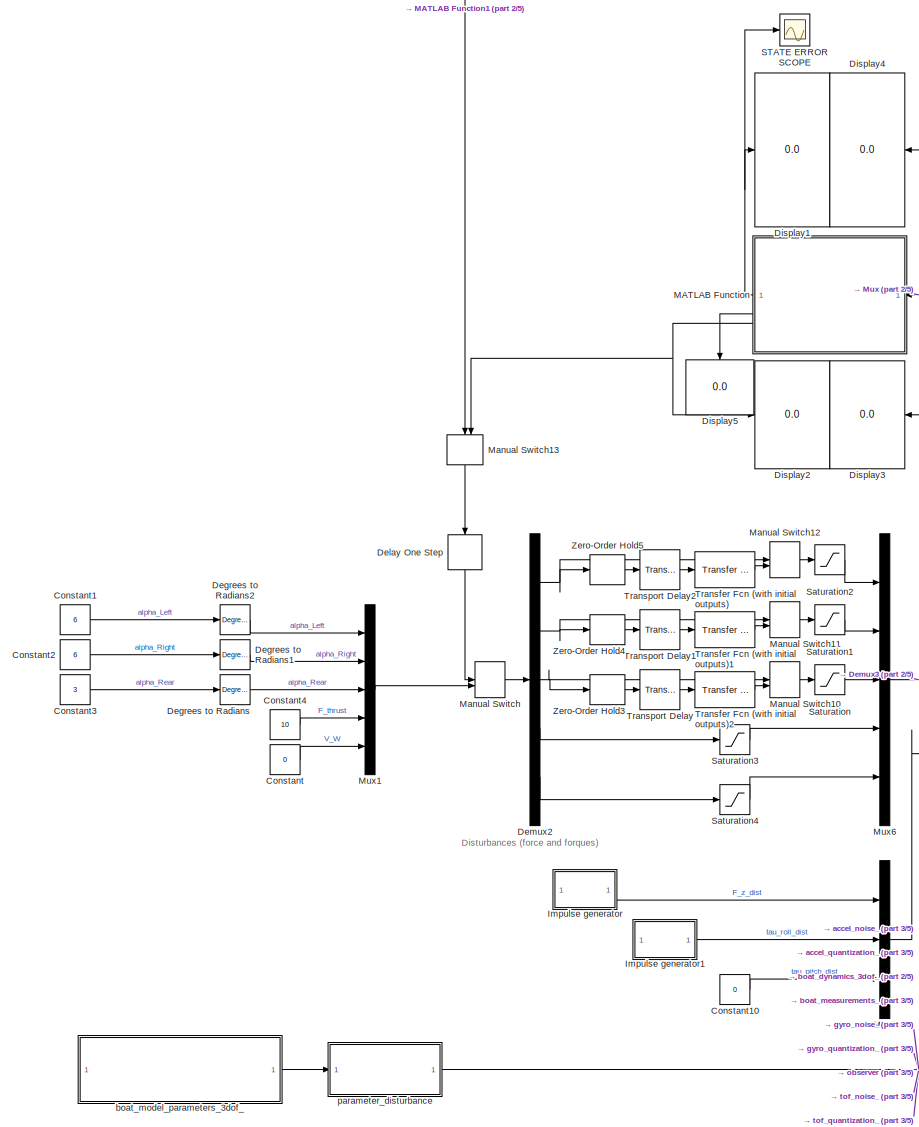
[diagram: root canvas - part 1/5, middle left region]
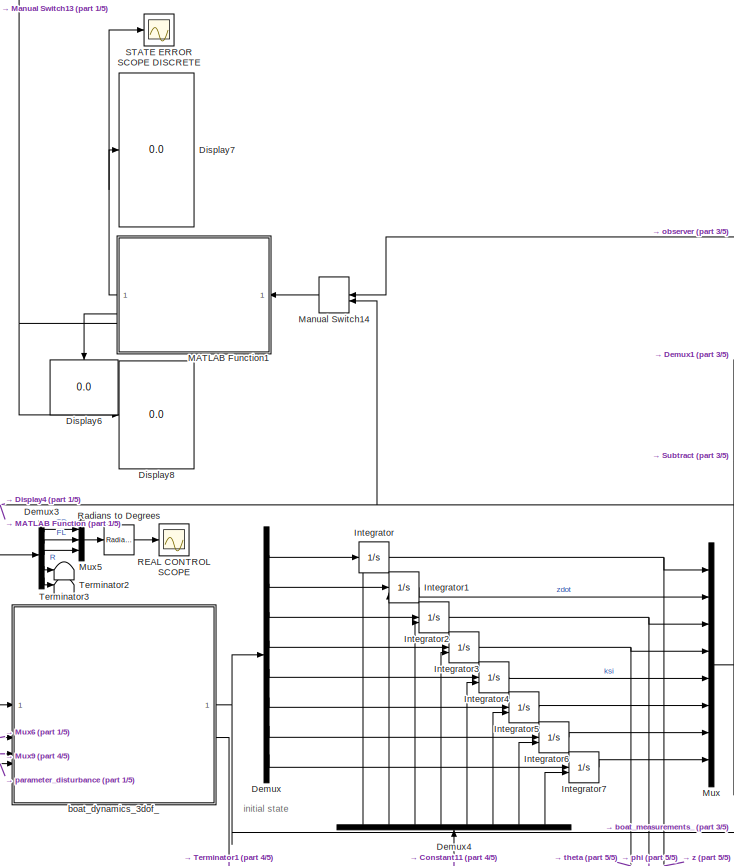
[diagram: root canvas - part 2/5, top center region]
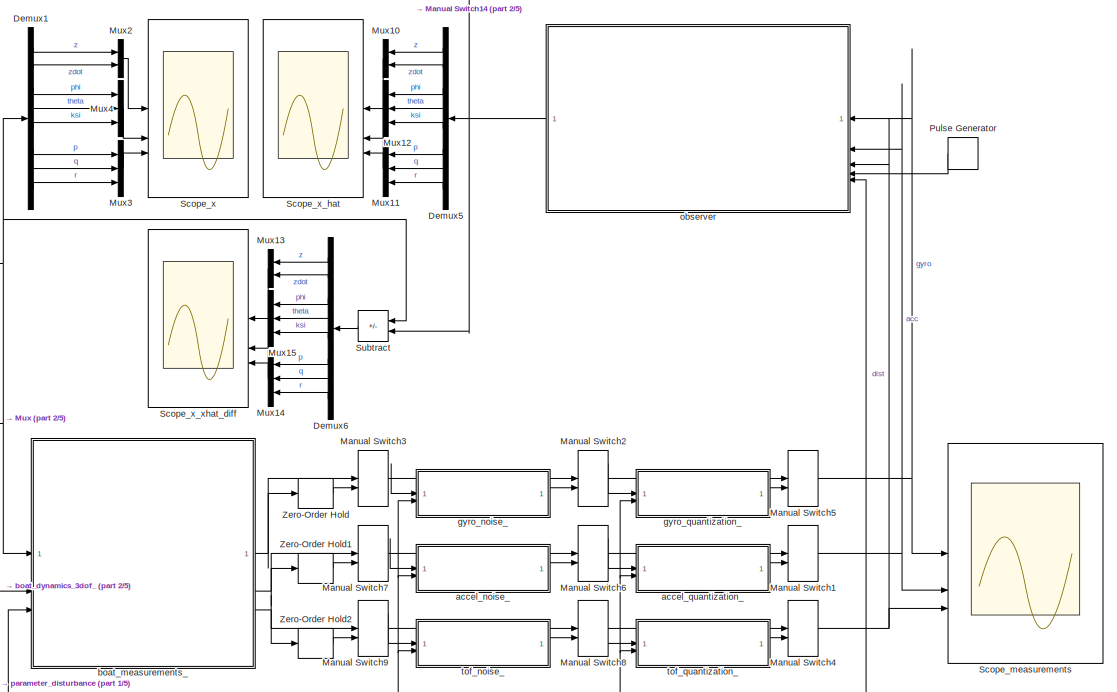
[diagram: root canvas - part 3/5, middle right region]
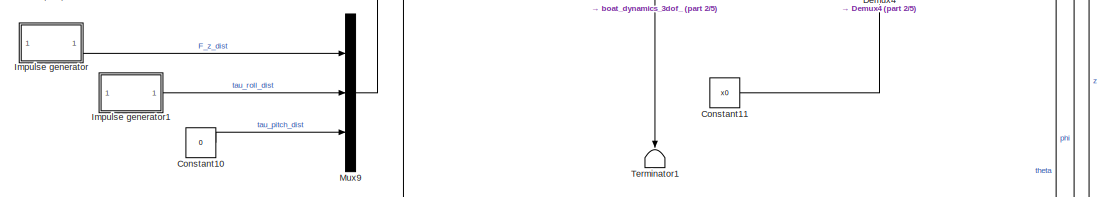
[diagram: root canvas - part 4/5, central region]
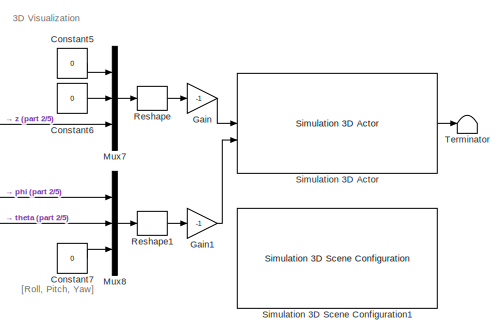
[diagram: root canvas - part 5/5, bottom right region]
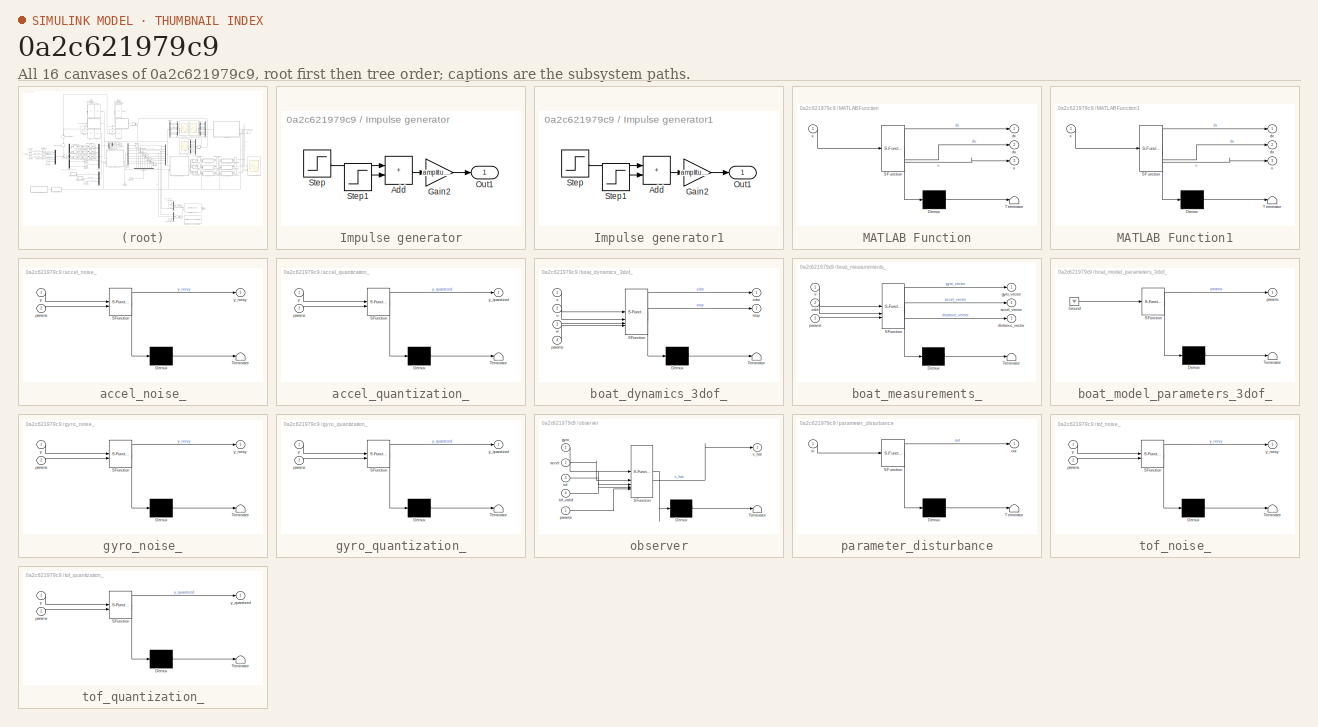
[diagram: thumbnail index - all 16 canvases of the model, root first then tree order]
MODEL slx_0a2c621979c9
KIND model
CONFIG AbsTol = auto
CONFIG EnableMultiTasking = off
CONFIG FixedStep = Ts_sim
CONFIG MaxStep = auto
CONFIG MinStep = auto
CONFIG RelTol = 1e-3
CONFIG SampleTimeConstraint = Unconstrained
CONFIG SolverName = ode4
CONFIG StartTime = 0.0
CONFIG StopTime = 8
BLOCK [Constant] Constant
  Value = 0
BLOCK [Constant] Constant1
  Value = 6
BLOCK [Constant] Constant10
  Value = 0
BLOCK [Constant] Constant11
  Value = x0
BLOCK [Constant] Constant2
  Value = 6
BLOCK [Constant] Constant3
  Value = 3
BLOCK [Constant] Constant4
  Value = 10
BLOCK [Constant] Constant5
  Value = 0
BLOCK [Constant] Constant6
  Value = 0
BLOCK [Constant] Constant7
  Value = 0
BLOCK [Reference] Degrees to Radians  REF=simulink_extras/Transformations/Degrees to
Radians
  SourceBlock = simulink_extras/Transformations/Degrees to\nRadians
  SourceType = DegreesToRadians
BLOCK [Reference] Degrees to Radians1  REF=simulink_extras/Transformations/Degrees to
Radians
  SourceBlock = simulink_extras/Transformations/Degrees to\nRadians
  SourceType = DegreesToRadians
BLOCK [Reference] Degrees to Radians2  REF=simulink_extras/Transformations/Degrees to
Radians
  SourceBlock = simulink_extras/Transformations/Degrees to\nRadians
  SourceType = DegreesToRadians
BLOCK [Delay] Delay One Step
  DelayLength = 1
  InputPortMap = u0
  NameLocation = left
BLOCK [Demux] Demux
  Outputs = 8
BLOCK [Demux] Demux1
  Outputs = 8
BLOCK [Demux] Demux2
  Outputs = 5
BLOCK [Demux] Demux3
  Outputs = 5
BLOCK [Demux] Demux4
  NameLocation = right
  Outputs = 8
BLOCK [Demux] Demux5
  Outputs = 8
BLOCK [Demux] Demux6
  Outputs = 8
BLOCK [Display] Display1
  Decimation = 1
  NameLocation = top
BLOCK [Display] Display2
  Decimation = 1
BLOCK [Display] Display3
  Decimation = 1
  NameLocation = top
BLOCK [Display] Display4
  Decimation = 1
  NameLocation = top
BLOCK [Display] Display5
  Decimation = 1
  NameLocation = left
BLOCK [Display] Display6
  Decimation = 1
  NameLocation = left
BLOCK [Display] Display7
  Decimation = 1
  NameLocation = top
BLOCK [Display] Display8
  Decimation = 1
BLOCK [Gain] Gain
  Gain = -1
BLOCK [Gain] Gain1
  Gain = -1
BLOCK [SubSystem] Impulse generator
BLOCK [Sum] Impulse generator/Add
  IconShape = rectangular
BLOCK [Gain] Impulse generator/Gain2
  Gain = amplitude
BLOCK [Outport] Impulse generator/Out1
BLOCK [Step] Impulse generator/Step
  SampleTime = 0
  Time = start
BLOCK [Step] Impulse generator/Step1
  After = -1
  SampleTime = 0
  Time = start+duration
BLOCK [SubSystem] Impulse generator1
BLOCK [Sum] Impulse generator1/Add
  IconShape = rectangular
BLOCK [Gain] Impulse generator1/Gain2
  Gain = amplitude
BLOCK [Outport] Impulse generator1/Out1
BLOCK [Step] Impulse generator1/Step
  SampleTime = 0
  Time = start
BLOCK [Step] Impulse generator1/Step1
  After = -1
  SampleTime = 0
  Time = start+duration
BLOCK [Integrator] Integrator
  InitialCondition = -0.11
  InitialConditionSource = external
BLOCK [Integrator] Integrator1
  InitialConditionSource = external
BLOCK [Integrator] Integrator2
  InitialCondition = deg2rad(3)
  InitialConditionSource = external
BLOCK [Integrator] Integrator3
  InitialConditionSource = external
BLOCK [Integrator] Integrator4
  InitialConditionSource = external
BLOCK [Integrator] Integrator5
  InitialConditionSource = external
BLOCK [Integrator] Integrator6
  InitialConditionSource = external
BLOCK [Integrator] Integrator7
  InitialConditionSource = external
BLOCK [SubSystem] MATLAB Function
  ErrorFcn = Stateflow.Translate.translate
  NameLocation = top
  PermitHierarchicalResolution = ExplicitOnly
  SFBlockType = MATLAB Function
  TreatAsAtomicUnit = on
BLOCK [Demux] MATLAB Function/ Demux 
  Outputs = 1
BLOCK [S-Function] MATLAB Function/ SFunction 
  EnableBusSupport = off
  FunctionName = sf_sfun
  PortCounts = [1 4]
  SFcnIsStateOwnerBlock = off
  SFunctionDeploymentMode = off
  Tag = Stateflow S-Function 10
BLOCK [Terminator] MATLAB Function/ Terminator 
BLOCK [Outport] MATLAB Function/du
  Port = 2
BLOCK [Outport] MATLAB Function/dx
BLOCK [Outport] MATLAB Function/u
  Port = 3
BLOCK [Inport] MATLAB Function/x
BLOCK [SubSystem] MATLAB Function1
  ErrorFcn = Stateflow.Translate.translate
  NameLocation = top
  PermitHierarchicalResolution = ExplicitOnly
  SFBlockType = MATLAB Function
  SystemSampleTime = 0.01
  TreatAsAtomicUnit = on
BLOCK [Demux] MATLAB Function1/ Demux 
  Outputs = 1
BLOCK [S-Function] MATLAB Function1/ SFunction 
  EnableBusSupport = off
  FunctionName = sf_sfun
  PortCounts = [1 4]
  SFcnIsStateOwnerBlock = off
  SFunctionDeploymentMode = off
  Tag = Stateflow S-Function 13
BLOCK [Terminator] MATLAB Function1/ Terminator 
BLOCK [Outport] MATLAB Function1/du
  Port = 2
BLOCK [Outport] MATLAB Function1/dx
BLOCK [Outport] MATLAB Function1/u
  Port = 3
BLOCK [Inport] MATLAB Function1/x
BLOCK [ManualSwitch] Manual Switch
BLOCK [ManualSwitch] Manual Switch1
  CurrentSetting = 0
BLOCK [ManualSwitch] Manual Switch10
  CurrentSetting = 0
BLOCK [ManualSwitch] Manual Switch11
  CurrentSetting = 0
BLOCK [ManualSwitch] Manual Switch12
  CurrentSetting = 0
BLOCK [ManualSwitch] Manual Switch13
  NameLocation = left
BLOCK [ManualSwitch] Manual Switch14
  CurrentSetting = 0
  NameLocation = top
BLOCK [ManualSwitch] Manual Switch2
  CurrentSetting = 0
BLOCK [ManualSwitch] Manual Switch3
  CurrentSetting = 0
BLOCK [ManualSwitch] Manual Switch4
  CurrentSetting = 0
BLOCK [ManualSwitch] Manual Switch5
  CurrentSetting = 0
BLOCK [ManualSwitch] Manual Switch6
  CurrentSetting = 0
BLOCK [ManualSwitch] Manual Switch7
  CurrentSetting = 0
BLOCK [ManualSwitch] Manual Switch8
  CurrentSetting = 0
BLOCK [ManualSwitch] Manual Switch9
  CurrentSetting = 0
BLOCK [Mux] Mux
  DisplayOption = bar
  Inputs = 8
BLOCK [Mux] Mux1
  DisplayOption = bar
  Inputs = 5
BLOCK [Mux] Mux10
  DisplayOption = bar
  Inputs = 2
BLOCK [Mux] Mux11
  DisplayOption = bar
  Inputs = 3
BLOCK [Mux] Mux12
  DisplayOption = bar
  Inputs = 3
BLOCK [Mux] Mux13
  DisplayOption = bar
  Inputs = 2
BLOCK [Mux] Mux14
  DisplayOption = bar
  Inputs = 3
BLOCK [Mux] Mux15
  DisplayOption = bar
  Inputs = 3
BLOCK [Mux] Mux2
  DisplayOption = bar
  Inputs = 2
BLOCK [Mux] Mux3
  DisplayOption = bar
  Inputs = 3
BLOCK [Mux] Mux4
  DisplayOption = bar
  Inputs = 3
BLOCK [Mux] Mux5
  DisplayOption = bar
  Inputs = 3
BLOCK [Mux] Mux6
  DisplayOption = bar
  Inputs = 5
BLOCK [Mux] Mux7
  DisplayOption = bar
  Inputs = 3
BLOCK [Mux] Mux8
  DisplayOption = bar
  Inputs = 3
BLOCK [Mux] Mux9
  DisplayOption = bar
  Inputs = 3
BLOCK [DiscretePulseGenerator] Pulse Generator
  NameLocation = top
  Period = 0.1
  PulseType = Time based
BLOCK [Scope] REAL CONTROL SCOPE
  ActiveDisplayYMaximum = 14.414553474805711
  ActiveDisplayYMinimum = -4.7342318081054131
  DataLoggingVariableName = ScopeData2
  Floating = off
  GraphicalSettings = {"Style":{"BackgroundColor":[0.12941176470588237,0.12941176470588237,0.12941176470588237],"AxesColor":[0.07058823529411765,0.07058823529411765,0.07058823529411765],"LabelsColor":[0.8509803921568627,0.8509803921568627,0.8509803921568627],"PreserveColors":false,"Visible":[true,true,true],"LineStyle":["-","-","-"],"LineWidth":[1.5,1.5,1.5],"BarWidth":[0.9,0.9,0.9],"LineColor":["auto","auto","auto"],"...<+2302ch>
  MultipleDisplayCache = [{"MaxYLimMag":14.414553474805711,"MaxYLimReal":14.414553474805711,"MinYLimMag":0,"MinYLimReal":-4.7342318081054131,"PlotAsMagnitudePhase":false,"ShowGrid":true,"ShowLegend":true,"Title":"%<SignalLabel>","YLabel":""}]
  NumInputPorts = 1
  ScopeFrameLocation = window
  ShowLegend = on
  Visible = on
  WasSavedAsWebScope = on
  WindowPosition = [871.000000,947.000000,626.000000,620.000000,]
BLOCK [Reference] Radians to Degrees  REF=simulink_extras/Transformations/Radians
to Degrees
  SourceBlock = simulink_extras/Transformations/Radians\nto Degrees
  SourceType = RadiansToDegrees
BLOCK [Reshape] Reshape
  OutputDimensionality = Row vector (2-D)
BLOCK [Reshape] Reshape1
  OutputDimensionality = Row vector (2-D)
BLOCK [Scope] STATE ERROR SCOPE
  ActiveDisplayYMaximum = 0.25579071640803624
  ActiveDisplayYMinimum = -0.17004569092279864
  DataLoggingVariableName = ScopeData3
  Floating = off
  GraphicalSettings = {"Style":{"BackgroundColor":[0.12941176470588237,0.12941176470588237,0.12941176470588237],"AxesColor":[0.07058823529411765,0.07058823529411765,0.07058823529411765],"LabelsColor":[0.8509803921568627,0.8509803921568627,0.8509803921568627],"PreserveColors":false,"Visible":[true,true,true,true,true,true,true,true],"LineStyle":["-","-","-","-","-","-","-","-"],"LineWidth":[1.5,1.5,1.5,1.5,1.5,1.5,1.5,1...<+2977ch>
  MultipleDisplayCache = [{"MaxYLimMag":0.25579071640803624,"MaxYLimReal":0.25579071640803624,"MinYLimMag":0,"MinYLimReal":-0.17004569092279864,"PlotAsMagnitudePhase":false,"ShowGrid":true,"ShowLegend":true,"Title":"%<SignalLabel>","YLabel":""}]
  NumInputPorts = 1
  ScopeFrameLocation = window
  ShowLegend = on
  Visible = on
  WasSavedAsWebScope = on
  WindowPosition = [730.000000,922.000000,755.000000,777.000000,]
BLOCK [Scope] STATE ERROR SCOPE DISCRETE
  ActiveDisplayYMaximum = 0.25579071640803624
  ActiveDisplayYMinimum = -0.17004569092279864
  DataLoggingVariableName = ScopeData6
  Floating = off
  GraphicalSettings = {"Style":{"BackgroundColor":[0.12941176470588237,0.12941176470588237,0.12941176470588237],"AxesColor":[0.07058823529411765,0.07058823529411765,0.07058823529411765],"LabelsColor":[0.8509803921568627,0.8509803921568627,0.8509803921568627],"PreserveColors":false,"Visible":[true,true,true,true,true,true,true,true],"LineStyle":["-","-","-","-","-","-","-","-"],"LineWidth":[1.5,1.5,1.5,1.5,1.5,1.5,1.5,1...<+2977ch>
  MultipleDisplayCache = [{"MaxYLimMag":0.25579071640803624,"MaxYLimReal":0.25579071640803624,"MinYLimMag":0,"MinYLimReal":-0.17004569092279864,"PlotAsMagnitudePhase":false,"ShowGrid":true,"ShowLegend":true,"Title":"%<SignalLabel>","YLabel":""}]
  NumInputPorts = 1
  ScopeFrameLocation = window
  ShowLegend = on
  WasSavedAsWebScope = on
  WindowPosition = [391.000000,44.000000,755.000000,777.000000,]
BLOCK [Saturate] Saturation
  LowerLimit = params.hydrofoils.dynamics.alpha_min
  UpperLimit = params.hydrofoils.dynamics.alpha_max
BLOCK [Saturate] Saturation1
  LowerLimit = params.hydrofoils.dynamics.alpha_min
  UpperLimit = params.hydrofoils.dynamics.alpha_max
BLOCK [Saturate] Saturation2
  LowerLimit = params.hydrofoils.dynamics.alpha_min
  UpperLimit = params.hydrofoils.dynamics.alpha_max
BLOCK [Saturate] Saturation3
  LowerLimit = 0
  UpperLimit = 5
BLOCK [Saturate] Saturation4
  LowerLimit = 0
  UpperLimit = 5
BLOCK [Scope] Scope_measurements
  ActiveDisplayYMaximum = 101.76827639999999
  ActiveDisplayYMinimum = -100.06095959999999
  DataLoggingVariableName = ScopeData1
  Floating = off
  GraphicalSettings = {"AxesScalingProperties":{"AlignXAxis":"Center","AlignYAxis":"Center","AutoScaleXAxisLimits":false,"AxesScaling":"Manual","AxesScalingNumUpdates":10,"ExpandOnly":true,"ScaleAxesLimitsAtStop":false,"XAxisDataRange":100,"YAxisDataRange":80},"DisplayProperties":{"ColorOrder":["auto","auto","auto","auto","auto","auto","auto","auto","auto","auto","auto","auto","auto","auto","auto","auto","auto","auto",...<+3393ch>  <repeated x4 — deduplicated; at blocks: Scope_measurements, Scope_x, Scope_x_hat, Scope_x_xhat_diff>
  LayoutDimensionsString = [3,1]
  MultipleDisplayCache = [{"MaxYLimMag":101.76827639999999,"MaxYLimReal":101.76827639999999,"MinYLimMag":0,"MinYLimReal":-100.06095959999999,"PlotAsMagnitudePhase":false,"ShowGrid":true,"ShowLegend":true,"Title":"%<SignalLabel>","YLabel":""},{"MaxYLimMag":2.1951216,"MaxYLimReal":2.1951216,"MinYLimMag":0,"MinYLimReal":-0.24390239999999994,"PlotAsMagnitudePhase":false,"ShowGrid":true,"ShowLegend":true,"Title":"%<SignalLabel...<+202ch>
  NumInputPorts = 3
  ScopeFrameLocation = window
  ShowLegend = on
  Visible = on
  WasSavedAsWebScope = on
  WindowPosition = [1.000000,41.000000,1534.000000,793.000000,]
BLOCK [Scope] Scope_x
  ActiveDisplayYMaximum = 0.19733793420552548
  ActiveDisplayYMinimum = -0.17630862529412039
  Floating = off
  LayoutDimensionsString = [3,1]
  MultipleDisplayCache = [{"MaxYLimMag":0.19733793420552548,"MaxYLimReal":0.19733793420552548,"MinYLimMag":0,"MinYLimReal":-0.17630862529412039,"PlotAsMagnitudePhase":false,"ShowGrid":true,"ShowLegend":true,"Title":"%<SignalLabel>","YLabel":""},{"MaxYLimMag":0.56207466308335663,"MaxYLimReal":0.56207466308335663,"MinYLimMag":0,"MinYLimReal":-0.062610373434654226,"PlotAsMagnitudePhase":false,"ShowGrid":true,"ShowLegend":tru...<+256ch>
  NumInputPorts = 3
  ScopeFrameLocation = window
  ShowLegend = on
  Visible = on
  WasSavedAsWebScope = on
  WindowPosition = [2.000000,898.000000,766.000000,806.000000,]
BLOCK [Scope] Scope_x_hat
  ActiveDisplayYMaximum = 0.11112560808179328
  ActiveDisplayYMinimum = -0.13132996727023863
  DataLoggingVariableName = ScopeData4
  Floating = off
  LayoutDimensionsString = [3,1]
  MultipleDisplayCache = [{"MaxYLimMag":0.13132996727023863,"MaxYLimReal":0.11112560808179328,"MinYLimMag":0,"MinYLimReal":-0.13132996727023863,"PlotAsMagnitudePhase":false,"ShowGrid":true,"ShowLegend":true,"Title":"%<SignalLabel>","YLabel":""},{"MaxYLimMag":0.56310585799923485,"MaxYLimReal":0.56310585799923485,"MinYLimMag":0,"MinYLimReal":-0.0791319305127618,"PlotAsMagnitudePhase":false,"ShowGrid":true,"ShowLegend":true,...<+254ch>
  NumInputPorts = 3
  ScopeFrameLocation = window
  ShowLegend = on
  Visible = on
  WasSavedAsWebScope = on
  WindowPosition = [770.000000,898.000000,766.000000,806.000000,]
BLOCK [Scope] Scope_x_xhat_diff
  ActiveDisplayYMaximum = 0.17133384264846646
  ActiveDisplayYMinimum = -0.26001894239309453
  DataLoggingVariableName = ScopeData5
  Floating = off
  LayoutDimensionsString = [3,1]
  MultipleDisplayCache = [{"MaxYLimMag":0.26001894239309453,"MaxYLimReal":0.17133384264846646,"MinYLimMag":0,"MinYLimReal":-0.26001894239309453,"PlotAsMagnitudePhase":false,"ShowGrid":true,"ShowLegend":true,"Title":"%<SignalLabel>","YLabel":""},{"MaxYLimMag":0.023173505148703102,"MaxYLimReal":0.023173505148703102,"MinYLimMag":0,"MinYLimReal":-0.014061722368041311,"PlotAsMagnitudePhase":false,"ShowGrid":true,"ShowLegend":t...<+261ch>
  NumInputPorts = 3
  ScopeFrameLocation = window
  ShowLegend = on
  Visible = on
  WasSavedAsWebScope = on
  WindowPosition = [236.000000,947.000000,1225.000000,565.000000,]
BLOCK [Reference] Simulation 3D Actor  REF=sim3dlib/Simulation 3D Actor
  LibrarySourceBlock = sl3dlib/Simulation 3D/Actors/Simulation 3D Actor
  Priority = 1
  SourceBlock = sim3dlib/Simulation 3D Actor
  SourceType = Simulation 3D Actor
BLOCK [Reference] Simulation 3D Scene Configuration1  REF=sim3dlib/Simulation 3D Scene Configuration
  LibrarySourceBlock = sl3dlib/Simulation 3D/Environment/Simulation 3D Scene Configuration
  Priority = 0
  SourceBlock = sim3dlib/Simulation 3D Scene Configuration
  SourceType = Simulation 3D Scene Configuration
BLOCK [Sum] Subtract
  IconShape = rectangular
  Inputs = +-
BLOCK [Terminator] Terminator
BLOCK [Terminator] Terminator1
  NameLocation = left
BLOCK [Terminator] Terminator2
BLOCK [Terminator] Terminator3
BLOCK [Reference] Transfer Fcn (with initial outputs)  REF=simulink_extras/Additional
Linear/Transfer Fcn
(with initial outputs)
  SourceBlock = simulink_extras/Additional\nLinear/Transfer Fcn\n(with initial outputs)
  SourceType = Transfer Function with Initial Outputs
BLOCK [Reference] Transfer Fcn (with initial outputs)1  REF=simulink_extras/Additional
Linear/Transfer Fcn
(with initial outputs)
  SourceBlock = simulink_extras/Additional\nLinear/Transfer Fcn\n(with initial outputs)
  SourceType = Transfer Function with Initial Outputs
BLOCK [Reference] Transfer Fcn (with initial outputs)2  REF=simulink_extras/Additional
Linear/Transfer Fcn
(with initial outputs)
  SourceBlock = simulink_extras/Additional\nLinear/Transfer Fcn\n(with initial outputs)
  SourceType = Transfer Function with Initial Outputs
BLOCK [TransportDelay] Transport Delay
  DelayTime = params.hydrofoils.dynamics.L
  InitialOutput = u0(3)
BLOCK [TransportDelay] Transport Delay1
  DelayTime = params.hydrofoils.dynamics.L
  InitialOutput = u0(2)
BLOCK [TransportDelay] Transport Delay2
  DelayTime = params.hydrofoils.dynamics.L
  InitialOutput = u0(1)
BLOCK [ZeroOrderHold] Zero-Order Hold
  SampleTime = params.gyro.sample_time
BLOCK [ZeroOrderHold] Zero-Order Hold1
  SampleTime = params.accel.sample_time
BLOCK [ZeroOrderHold] Zero-Order Hold2
  SampleTime = params.tof.sample_time
BLOCK [ZeroOrderHold] Zero-Order Hold3
  SampleTime = params.hydrofoils.dynamics.Ts_act
BLOCK [ZeroOrderHold] Zero-Order Hold4
  SampleTime = params.hydrofoils.dynamics.Ts_act
BLOCK [ZeroOrderHold] Zero-Order Hold5
  SampleTime = params.hydrofoils.dynamics.Ts_act
BLOCK [SubSystem] accel_noise_
  ErrorFcn = Stateflow.Translate.translate
  PermitHierarchicalResolution = ExplicitOnly
  SFBlockType = MATLAB Function
  SystemSampleTime = params.accel.sample_time
  TreatAsAtomicUnit = on
BLOCK [Demux] accel_noise_/ Demux 
  Outputs = 1
BLOCK [S-Function] accel_noise_/ SFunction 
  EnableBusSupport = off
  FunctionName = sf_sfun
  PortCounts = [2 2]
  SFcnIsStateOwnerBlock = off
  SFunctionDeploymentMode = off
  Tag = Stateflow S-Function 6
BLOCK [Terminator] accel_noise_/ Terminator 
BLOCK [Inport] accel_noise_/params
  Port = 2
BLOCK [Inport] accel_noise_/y
BLOCK [Outport] accel_noise_/y_noisy
BLOCK [SubSystem] accel_quantization_
  ErrorFcn = Stateflow.Translate.translate
  PermitHierarchicalResolution = ExplicitOnly
  SFBlockType = MATLAB Function
  TreatAsAtomicUnit = on
BLOCK [Demux] accel_quantization_/ Demux 
  Outputs = 1
BLOCK [S-Function] accel_quantization_/ SFunction 
  EnableBusSupport = off
  FunctionName = sf_sfun
  PortCounts = [2 2]
  SFcnIsStateOwnerBlock = off
  SFunctionDeploymentMode = off
  Tag = Stateflow S-Function 8
BLOCK [Terminator] accel_quantization_/ Terminator 
BLOCK [Inport] accel_quantization_/params
  Port = 2
BLOCK [Inport] accel_quantization_/y
BLOCK [Outport] accel_quantization_/y_quantized
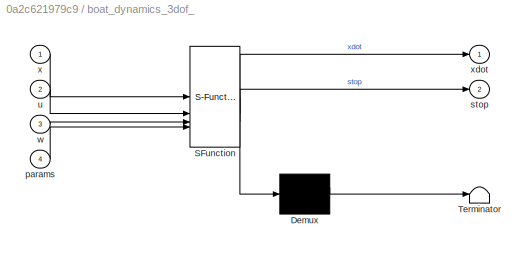
BLOCK [SubSystem] boat_dynamics_3dof_
  ErrorFcn = Stateflow.Translate.translate
  PermitHierarchicalResolution = ExplicitOnly
  SFBlockType = MATLAB Function
  TreatAsAtomicUnit = on
BLOCK [Demux] boat_dynamics_3dof_/ Demux 
  Outputs = 1
BLOCK [S-Function] boat_dynamics_3dof_/ SFunction 
  EnableBusSupport = off
  FunctionName = sf_sfun
  PortCounts = [4 3]
  SFcnIsStateOwnerBlock = off
  SFunctionDeploymentMode = off
  Tag = Stateflow S-Function 2
BLOCK [Terminator] boat_dynamics_3dof_/ Terminator 
BLOCK [Inport] boat_dynamics_3dof_/params
  Port = 4
BLOCK [Outport] boat_dynamics_3dof_/stop
  Port = 2
BLOCK [Inport] boat_dynamics_3dof_/u
  Port = 2
BLOCK [Inport] boat_dynamics_3dof_/w
  Port = 3
BLOCK [Inport] boat_dynamics_3dof_/x
BLOCK [Outport] boat_dynamics_3dof_/xdot
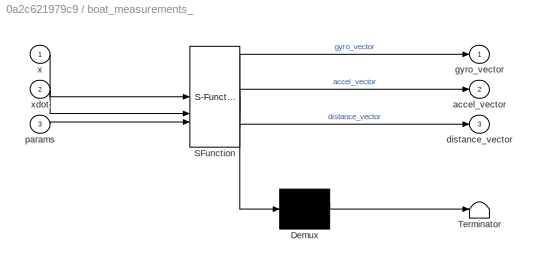
BLOCK [SubSystem] boat_measurements_
  ErrorFcn = Stateflow.Translate.translate
  PermitHierarchicalResolution = ExplicitOnly
  SFBlockType = MATLAB Function
  TreatAsAtomicUnit = on
BLOCK [Demux] boat_measurements_/ Demux 
  Outputs = 1
BLOCK [S-Function] boat_measurements_/ SFunction 
  EnableBusSupport = off
  FunctionName = sf_sfun
  PortCounts = [3 4]
  SFcnIsStateOwnerBlock = off
  SFunctionDeploymentMode = off
  Tag = Stateflow S-Function 3
BLOCK [Terminator] boat_measurements_/ Terminator 
BLOCK [Outport] boat_measurements_/accel_vector
  Port = 2
BLOCK [Outport] boat_measurements_/distance_vector
  Port = 3
BLOCK [Outport] boat_measurements_/gyro_vector
BLOCK [Inport] boat_measurements_/params
  Port = 3
BLOCK [Inport] boat_measurements_/x
BLOCK [Inport] boat_measurements_/xdot
  Port = 2
BLOCK [SubSystem] boat_model_parameters_3dof_
  ErrorFcn = Stateflow.Translate.translate
  PermitHierarchicalResolution = ExplicitOnly
  RTWSystemCode = Inline
  SFBlockType = MATLAB Function
  TreatAsAtomicUnit = on
BLOCK [Demux] boat_model_parameters_3dof_/ Demux 
  Outputs = 1
BLOCK [Ground] boat_model_parameters_3dof_/ Ground 
BLOCK [S-Function] boat_model_parameters_3dof_/ SFunction 
  EnableBusSupport = off
  FunctionName = sf_sfun
  PortCounts = [1 2]
  SFcnIsStateOwnerBlock = off
  SFunctionDeploymentMode = off
  Tag = Stateflow S-Function 1
BLOCK [Terminator] boat_model_parameters_3dof_/ Terminator 
BLOCK [Outport] boat_model_parameters_3dof_/params
BLOCK [SubSystem] gyro_noise_
  ErrorFcn = Stateflow.Translate.translate
  PermitHierarchicalResolution = ExplicitOnly
  SFBlockType = MATLAB Function
  SystemSampleTime = params.gyro.sample_time
  TreatAsAtomicUnit = on
BLOCK [Demux] gyro_noise_/ Demux 
  Outputs = 1
BLOCK [S-Function] gyro_noise_/ SFunction 
  EnableBusSupport = off
  FunctionName = sf_sfun
  PortCounts = [2 2]
  SFcnIsStateOwnerBlock = off
  SFunctionDeploymentMode = off
  Tag = Stateflow S-Function 4
BLOCK [Terminator] gyro_noise_/ Terminator 
BLOCK [Inport] gyro_noise_/params
  Port = 2
BLOCK [Inport] gyro_noise_/y
BLOCK [Outport] gyro_noise_/y_noisy
BLOCK [SubSystem] gyro_quantization_
  ErrorFcn = Stateflow.Translate.translate
  PermitHierarchicalResolution = ExplicitOnly
  SFBlockType = MATLAB Function
  TreatAsAtomicUnit = on
BLOCK [Demux] gyro_quantization_/ Demux 
  Outputs = 1
BLOCK [S-Function] gyro_quantization_/ SFunction 
  EnableBusSupport = off
  FunctionName = sf_sfun
  PortCounts = [2 2]
  SFcnIsStateOwnerBlock = off
  SFunctionDeploymentMode = off
  Tag = Stateflow S-Function 5
BLOCK [Terminator] gyro_quantization_/ Terminator 
BLOCK [Inport] gyro_quantization_/params
  Port = 2
BLOCK [Inport] gyro_quantization_/y
BLOCK [Outport] gyro_quantization_/y_quantized
BLOCK [SubSystem] observer
  ErrorFcn = Stateflow.Translate.translate
  NameLocation = top
  PermitHierarchicalResolution = ExplicitOnly
  SFBlockType = MATLAB Function
  SystemSampleTime = Ts_observer
  TreatAsAtomicUnit = on
BLOCK [Demux] observer/ Demux 
  Outputs = 1
BLOCK [S-Function] observer/ SFunction 
  EnableBusSupport = off
  FunctionName = sf_sfun
  PortCounts = [5 2]
  SFcnIsStateOwnerBlock = off
  SFunctionDeploymentMode = off
  Tag = Stateflow S-Function 12
BLOCK [Terminator] observer/ Terminator 
BLOCK [Inport] observer/accel
  Port = 2
BLOCK [Inport] observer/gyro
BLOCK [Inport] observer/params
  Port = 5
BLOCK [Inport] observer/tof
  Port = 3
BLOCK [Inport] observer/tof_valid
  Port = 4
BLOCK [Outport] observer/x_hat
BLOCK [SubSystem] parameter_disturbance
  Commented = through
  ErrorFcn = Stateflow.Translate.translate
  PermitHierarchicalResolution = ExplicitOnly
  SFBlockType = MATLAB Function
  TreatAsAtomicUnit = on
BLOCK [Demux] parameter_disturbance/ Demux 
  Outputs = 1
BLOCK [S-Function] parameter_disturbance/ SFunction 
  EnableBusSupport = off
  FunctionName = sf_sfun
  PortCounts = [1 2]
  SFcnIsStateOwnerBlock = off
  SFunctionDeploymentMode = off
  Tag = Stateflow S-Function 11
BLOCK [Terminator] parameter_disturbance/ Terminator 
BLOCK [Inport] parameter_disturbance/in
BLOCK [Outport] parameter_disturbance/out
BLOCK [SubSystem] tof_noise_
  ErrorFcn = Stateflow.Translate.translate
  PermitHierarchicalResolution = ExplicitOnly
  SFBlockType = MATLAB Function
  SystemSampleTime = params.tof.sample_time
  TreatAsAtomicUnit = on
BLOCK [Demux] tof_noise_/ Demux 
  Outputs = 1
BLOCK [S-Function] tof_noise_/ SFunction 
  EnableBusSupport = off
  FunctionName = sf_sfun
  PortCounts = [2 2]
  SFcnIsStateOwnerBlock = off
  SFunctionDeploymentMode = off
  Tag = Stateflow S-Function 7
BLOCK [Terminator] tof_noise_/ Terminator 
BLOCK [Inport] tof_noise_/params
  Port = 2
BLOCK [Inport] tof_noise_/y
BLOCK [Outport] tof_noise_/y_noisy
BLOCK [SubSystem] tof_quantization_
  ErrorFcn = Stateflow.Translate.translate
  PermitHierarchicalResolution = ExplicitOnly
  SFBlockType = MATLAB Function
  TreatAsAtomicUnit = on
BLOCK [Demux] tof_quantization_/ Demux 
  Outputs = 1
BLOCK [S-Function] tof_quantization_/ SFunction 
  EnableBusSupport = off
  FunctionName = sf_sfun
  PortCounts = [2 2]
  SFcnIsStateOwnerBlock = off
  SFunctionDeploymentMode = off
  Tag = Stateflow S-Function 9
BLOCK [Terminator] tof_quantization_/ Terminator 
BLOCK [Inport] tof_quantization_/params
  Port = 2
BLOCK [Inport] tof_quantization_/y
BLOCK [Outport] tof_quantization_/y_quantized
ANNOTATION (root): 3D Visualization
ANNOTATION (root): Disturbances (force and forques)
ANNOTATION (root): [Roll, Pitch, Yaw]
ANNOTATION (root): initial state
LINE Constant10:1 -> Mux9:3
LINE Constant11:1 -> Demux4:1
LINE Constant1:1 -> Degrees to Radians2:1
LINE Constant2:1 -> Degrees to Radians1:1
LINE Constant3:1 -> Degrees to Radians:1
LINE Constant4:1 -> Mux1:4
LINE Constant5:1 -> Mux7:1
LINE Constant6:1 -> Mux7:2
LINE Constant7:1 -> Mux8:3
LINE Constant:1 -> Mux1:5
LINE Degrees to Radians1:1 -> Mux1:2
LINE Degrees to Radians2:1 -> Mux1:1
LINE Degrees to Radians:1 -> Mux1:3
LINE Delay One Step:1 -> Manual Switch:1
LINE Demux1:1 -> Mux2:1
LINE Demux1:2 -> Mux2:2
LINE Demux1:3 -> Mux4:1
LINE Demux1:4 -> Mux4:2
LINE Demux1:5 -> Mux4:3
LINE Demux1:6 -> Mux3:1
LINE Demux1:7 -> Mux3:2
LINE Demux1:8 -> Mux3:3
NET Demux2:1 -> Manual Switch12:1, Zero-Order Hold5:1
NET Demux2:2 -> Manual Switch11:1, Zero-Order Hold4:1
NET Demux2:3 -> Manual Switch10:1, Zero-Order Hold3:1
LINE Demux2:4 -> Saturation3:1
LINE Demux2:5 -> Saturation4:1
LINE Demux3:1 -> Mux5:1
LINE Demux3:2 -> Mux5:2
LINE Demux3:3 -> Mux5:3
LINE Demux3:4 -> Terminator3:1
LINE Demux3:5 -> Terminator2:1
LINE Demux4:1 -> Integrator:2
LINE Demux4:2 -> Integrator1:2
LINE Demux4:3 -> Integrator2:2
LINE Demux4:4 -> Integrator3:2
LINE Demux4:5 -> Integrator4:2
LINE Demux4:6 -> Integrator5:2
LINE Demux4:7 -> Integrator6:2
LINE Demux4:8 -> Integrator7:2
LINE Demux5:1 -> Mux10:1
LINE Demux5:2 -> Mux10:2
LINE Demux5:3 -> Mux12:1
LINE Demux5:4 -> Mux12:2
LINE Demux5:5 -> Mux12:3
LINE Demux5:6 -> Mux11:1
LINE Demux5:7 -> Mux11:2
LINE Demux5:8 -> Mux11:3
LINE Demux6:1 -> Mux13:1
LINE Demux6:2 -> Mux13:2
LINE Demux6:3 -> Mux15:1
LINE Demux6:4 -> Mux15:2
LINE Demux6:5 -> Mux15:3
LINE Demux6:6 -> Mux14:1
LINE Demux6:7 -> Mux14:2
LINE Demux6:8 -> Mux14:3
LINE Demux:1 -> Integrator:1
LINE Demux:2 -> Integrator1:1
LINE Demux:3 -> Integrator2:1
LINE Demux:4 -> Integrator3:1
LINE Demux:5 -> Integrator4:1
LINE Demux:6 -> Integrator5:1
LINE Demux:7 -> Integrator6:1
LINE Demux:8 -> Integrator7:1
LINE Gain1:1 -> Simulation 3D Actor:2
LINE Gain:1 -> Simulation 3D Actor:1
LINE Impulse generator/Add:1 -> Impulse generator/Gain2:1
LINE Impulse generator/Gain2:1 -> Impulse generator/Out1:1
LINE Impulse generator/Step1:1 -> Impulse generator/Add:2
LINE Impulse generator/Step:1 -> Impulse generator/Add:1
LINE Impulse generator1/Add:1 -> Impulse generator1/Gain2:1
LINE Impulse generator1/Gain2:1 -> Impulse generator1/Out1:1
LINE Impulse generator1/Step1:1 -> Impulse generator1/Add:2
LINE Impulse generator1/Step:1 -> Impulse generator1/Add:1
LINE Impulse generator1:1 -> Mux9:2
LINE Impulse generator:1 -> Mux9:1
LINE Integrator1:1 -> Mux:2
NET Integrator2:1 -> Mux8:1, Mux:3
NET Integrator3:1 -> Mux8:2, Mux:4
LINE Integrator4:1 -> Mux:5
LINE Integrator5:1 -> Mux:6
LINE Integrator6:1 -> Mux:7
LINE Integrator7:1 -> Mux:8
NET Integrator:1 -> Mux7:3, Mux:1
NET MATLAB Function1:1 -> Display7:1, STATE ERROR SCOPE DISCRETE:1
LINE MATLAB Function1:2 -> Display6:1
NET MATLAB Function1:3 -> Display8:1, Manual Switch13:1
NET MATLAB Function:1 -> Display1:1, STATE ERROR SCOPE:1
LINE MATLAB Function:2 -> Display5:1
NET MATLAB Function:3 -> Display2:1, Manual Switch13:2
LINE Manual Switch10:1 -> Saturation:1
LINE Manual Switch11:1 -> Saturation1:1
LINE Manual Switch12:1 -> Saturation2:1
LINE Manual Switch13:1 -> Delay One Step:1
LINE Manual Switch14:1 -> MATLAB Function1:1
NET Manual Switch1:1 -> Scope_measurements:2, observer:2
NET Manual Switch2:1 -> Manual Switch5:1, gyro_quantization_:1
NET Manual Switch3:1 -> Manual Switch2:1, gyro_noise_:1
NET Manual Switch4:1 -> Scope_measurements:3, observer:3
NET Manual Switch5:1 -> Scope_measurements:1, observer:1
NET Manual Switch6:1 -> Manual Switch1:1, accel_quantization_:1
NET Manual Switch7:1 -> Manual Switch6:1, accel_noise_:1
NET Manual Switch8:1 -> Manual Switch4:1, tof_quantization_:1
NET Manual Switch9:1 -> Manual Switch8:1, tof_noise_:1
LINE Manual Switch:1 -> Demux2:1
LINE Mux10:1 -> Scope_x_hat:1
LINE Mux11:1 -> Scope_x_hat:3
LINE Mux12:1 -> Scope_x_hat:2
LINE Mux13:1 -> Scope_x_xhat_diff:1
LINE Mux14:1 -> Scope_x_xhat_diff:3
LINE Mux15:1 -> Scope_x_xhat_diff:2
LINE Mux1:1 -> Manual Switch:2
LINE Mux2:1 -> Scope_x:1
LINE Mux3:1 -> Scope_x:3
LINE Mux4:1 -> Scope_x:2
LINE Mux5:1 -> Radians to Degrees:1
NET Mux6:1 -> Demux3:1, Display3:1, boat_dynamics_3dof_:2
LINE Mux7:1 -> Reshape:1
LINE Mux8:1 -> Reshape1:1
LINE Mux9:1 -> boat_dynamics_3dof_:3
NET Mux:1 -> Demux1:1, Display4:1, MATLAB Function:1, Manual Switch14:2, Subtract:1, boat_dynamics_3dof_:1, boat_measurements_:1
LINE Pulse Generator:1 -> observer:4
LINE Radians to Degrees:1 -> REAL CONTROL SCOPE:1
LINE Reshape1:1 -> Gain1:1
LINE Reshape:1 -> Gain:1
LINE Saturation1:1 -> Mux6:2
LINE Saturation2:1 -> Mux6:1
LINE Saturation3:1 -> Mux6:4
LINE Saturation4:1 -> Mux6:5
LINE Saturation:1 -> Mux6:3
LINE Simulation 3D Actor:1 -> Terminator:1
LINE Subtract:1 -> Demux6:1
LINE Transfer Fcn (with initial outputs)1:1 -> Manual Switch11:2
LINE Transfer Fcn (with initial outputs)2:1 -> Manual Switch10:2
LINE Transfer Fcn (with initial outputs):1 -> Manual Switch12:2
LINE Transport Delay1:1 -> Transfer Fcn (with initial outputs)1:1
LINE Transport Delay2:1 -> Transfer Fcn (with initial outputs):1
LINE Transport Delay:1 -> Transfer Fcn (with initial outputs)2:1
LINE Zero-Order Hold1:1 -> Manual Switch7:2
LINE Zero-Order Hold2:1 -> Manual Switch9:2
LINE Zero-Order Hold3:1 -> Transport Delay:1
LINE Zero-Order Hold4:1 -> Transport Delay1:1
LINE Zero-Order Hold5:1 -> Transport Delay2:1
LINE Zero-Order Hold:1 -> Manual Switch3:2
LINE accel_noise_:1 -> Manual Switch6:2
LINE accel_quantization_:1 -> Manual Switch1:2
NET boat_dynamics_3dof_:1 -> Demux:1, boat_measurements_:2
LINE boat_dynamics_3dof_:2 -> Terminator1:1
NET boat_measurements_:1 -> Manual Switch3:1, Zero-Order Hold:1
NET boat_measurements_:2 -> Manual Switch7:1, Zero-Order Hold1:1
NET boat_measurements_:3 -> Manual Switch9:1, Zero-Order Hold2:1
LINE boat_model_parameters_3dof_:1 -> parameter_disturbance:1
LINE gyro_noise_:1 -> Manual Switch2:2
LINE gyro_quantization_:1 -> Manual Switch5:2
NET observer:1 -> Demux5:1, Manual Switch14:1, Subtract:2
NET parameter_disturbance:1 -> accel_noise_:2, accel_quantization_:2, boat_dynamics_3dof_:4, boat_measurements_:3, gyro_noise_:2, gyro_quantization_:2, observer:5, tof_noise_:2, tof_quantization_:2
LINE tof_noise_:1 -> Manual Switch8:2
LINE tof_quantization_:1 -> Manual Switch4:2
note: NET lines group one-source signal fan-out (src -> all destinations, sorted); 1:1 wires keep LINE
CHART observer states=1 transitions=1
  STATE_LABEL 'eML_blk_kernel()'
  STATE_LABEL 'SCRIPT:\nfunction x_hat = observer(gyro, accel, tof, tof_valid, params)\n% Inputs:\n%   gyro  [3x1] [dps]   [gx gy gz]\n%   accel [3x1] [g]     [ax ay az]\n%   tof   [4x1] [mm]    [front_left, front_right, rear_left, rear_right]\n%   tof_valid [1]       is tof updated\n%   params              system parameters\n%\n% Outputs:\n%   x_hat = [\n%       zW;          LQR % 1 heave position (world frame, NED)\n%    ...<+3608ch>'
CHART boat_model_parameters_3dof_ states=1 transitions=1
  STATE_LABEL 'eML_blk_kernel()'
  STATE_LABEL 'SCRIPT:\nfunction params = boat_model_parameters_3dof_()\n    params = boat_model_parameters_3dof();\nend\n'
CHART MATLAB Function1 states=1 transitions=1
  STATE_LABEL 'eML_blk_kernel()'
  STATE_LABEL "SCRIPT:\nfunction [dx, du, u] = lqr_discrete_controller(x)\n    %#codegen\n    \n    % Load once (persistent)\n    persistent K u0 x0 ix iu\n    if isempty(K)\n        % data = load('tmp_continuus_controller.mat');\n        data = load('tmp_discrete_controller.mat');\n        K  = data.Kd;\n        u0 = data.u0;\n        x0 = data.x0;\n        ix = data.ix;\n        iu = data.iu;\n    end\n    \n    % State error...<+183ch>"
CHART boat_dynamics_3dof_ states=1 transitions=1
  STATE_LABEL 'eML_blk_kernel()'
  STATE_LABEL 'SCRIPT:\nfunction [ xdot, stop ] = boat_dynamics_3dof_(x, u, w, params)\n%#codegen\n    % % % Explicit size declaration\n    % % % xdot = zeros(8,1);\n\n    [ xdot, info ] = boat_dynamics_3dof(x, u, w, params);\n\n    stop = 0;\nend'
CHART boat_measurements_ states=1 transitions=1
  STATE_LABEL 'eML_blk_kernel()'
  STATE_LABEL 'SCRIPT:\nfunction [ gyro_vector, accel_vector, distance_vector ] = boat_measurements_(x, xdot, params)\n    [ gyro_vector, accel_vector, distance_vector ] = boat_measurements(x, xdot, params);\nend'
CHART gyro_noise_ states=1 transitions=1
  STATE_LABEL 'eML_blk_kernel()'
  STATE_LABEL 'SCRIPT:\nfunction y_noisy = gyro_noise_(y, params)\n    % White noise\n    y_noisy = y + params.gyro.noise_sigma .* randn(size(y));\nend'
CHART gyro_quantization_ states=1 transitions=1
  STATE_LABEL 'eML_blk_kernel()'
  STATE_LABEL 'SCRIPT:\nfunction y_quantized = gyro_quantization_(y, params)\n    y_quantized = params.gyro.quantization_step .* round(y ./ params.gyro.quantization_step);\nend\n'
CHART accel_noise_ states=1 transitions=1
  STATE_LABEL 'eML_blk_kernel()'
  STATE_LABEL 'SCRIPT:\nfunction y_noisy = accel_noise_(y, params)\n    % White noise\n    y_noisy = y + params.accel.noise_sigma .* randn(size(y));\nend'
CHART tof_noise_ states=1 transitions=1
  STATE_LABEL 'eML_blk_kernel()'
  STATE_LABEL 'SCRIPT:\nfunction y_noisy = tof_noise_(y, params)\n    % White noise linearly dependant on distance\n    sigma = params.tof.noise_sigma_a .* y + params.tof.noise_sigma_b;\n    y_noisy = y + sigma .* randn(size(y));\nend'
CHART accel_quantization_ states=1 transitions=1
  STATE_LABEL 'eML_blk_kernel()'
  STATE_LABEL 'SCRIPT:\nfunction y_quantized = accel_quantization_(y, params)\n    y_quantized = params.accel.quantization_step .* round(y ./ params.accel.quantization_step);\nend\n'
CHART tof_quantization_ states=1 transitions=1
  STATE_LABEL 'eML_blk_kernel()'
  STATE_LABEL 'SCRIPT:\nfunction y_quantized = tof_quantization_(y, params)\n    y_quantized = params.tof.quantization_step .* round(y ./ params.tof.quantization_step);\nend\n'
CHART MATLAB Function states=1 transitions=1
  STATE_LABEL 'eML_blk_kernel()'
  STATE_LABEL "SCRIPT:\nfunction [dx, du, u] = lqr_controller(x)\n    %#codegen\n    \n    % Load once (persistent)\n    persistent K u0 x0 ix iu\n    if isempty(K)\n        data = load('tmp_continuus_controller.mat');\n        % data = load('tmp_discrete_controller.mat');\n        K  = data.K;\n        u0 = data.u0;\n        x0 = data.x0;\n        ix = data.ix;\n        iu = data.iu;\n    end\n    \n    % State error\n    dx = ...<+173ch>"
CHART parameter_disturbance states=1 transitions=1
  STATE_LABEL 'eML_blk_kernel()'
  STATE_LABEL 'SCRIPT:\nfunction out = parameter_disturbance(in)\n    out = in;\n\n    % Introduce some variance\n    % out.m = in.m * 1.2;\n    % \n    % out.Ix_B = in.Ix_B * 1.2;\n    % out.Iy_B = in.Iy_B * .8;\nend'
CHART  states=0 transitions=0
CHART  states=0 transitions=0
CHART  states=0 transitions=0
CHART  states=0 transitions=0
CHART  states=0 transitions=0
CHART  states=0 transitions=0
CHART  states=0 transitions=0
CHART  states=0 transitions=0
CHART  states=0 transitions=0
CHART  states=0 transitions=0
CHART  states=0 transitions=0
CHART  states=0 transitions=0
CHART  states=0 transitions=0
